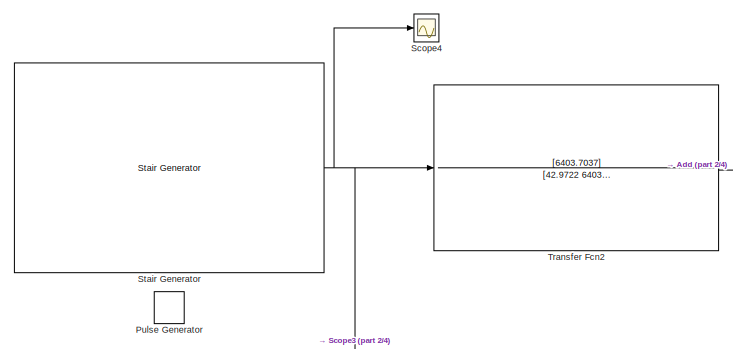
[diagram: root canvas - part 1/4, top left region]
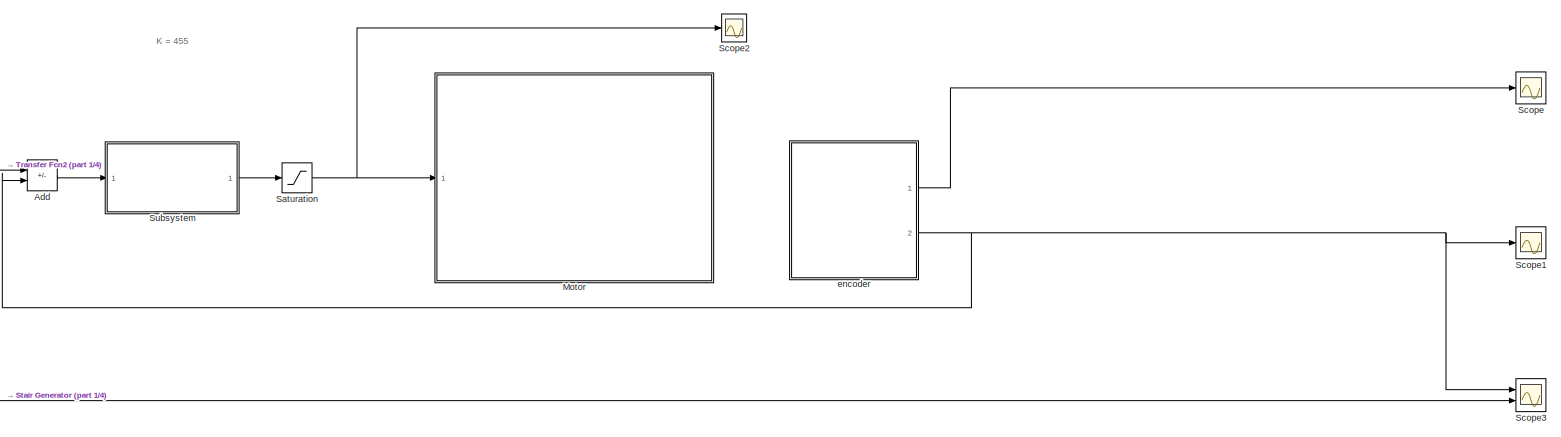
[diagram: root canvas - part 2/4, top right region]
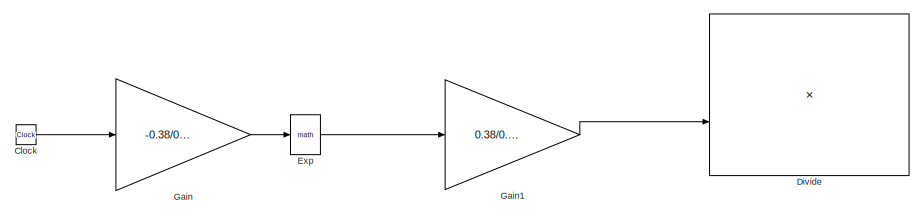
[diagram: root canvas - part 3/4, central region]
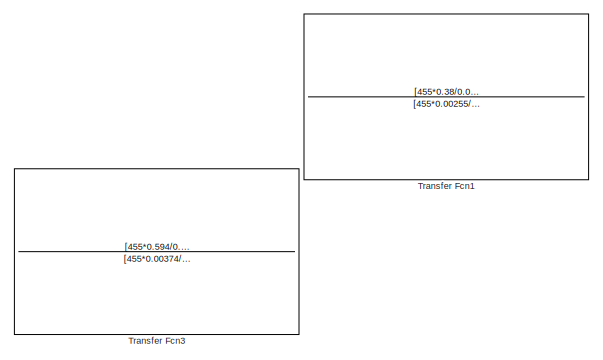
[diagram: root canvas - part 4/4, bottom right region]
MODEL slx_892e5833729a
KIND model
CONFIG AbsTol = auto
CONFIG EnableMultiTasking = on
CONFIG FixedStep = 0.001
CONFIG MaxStep = auto
CONFIG MinStep = auto
CONFIG RelTol = 1e-3
CONFIG SampleTimeConstraint = Unconstrained
CONFIG SolverName = FixedStepAuto
CONFIG StartTime = 0.0
CONFIG StopTime = inf
BLOCK [Sum] Add
  IconShape = rectangular
  Inputs = +-
  Ports = [2, 1]
BLOCK [Clock] Clock
  Commented = on
  Decimation = 1
BLOCK [Product] Divide
  Commented = on
  Inputs = **
  Ports = [2, 1]
BLOCK [Math] Exp
  Commented = on
  Ports = [1, 1]
BLOCK [Gain] Gain
  Commented = on
  Gain = -0.38/0.00255
BLOCK [Gain] Gain1
  Commented = on
  Gain = 0.38/0.00255
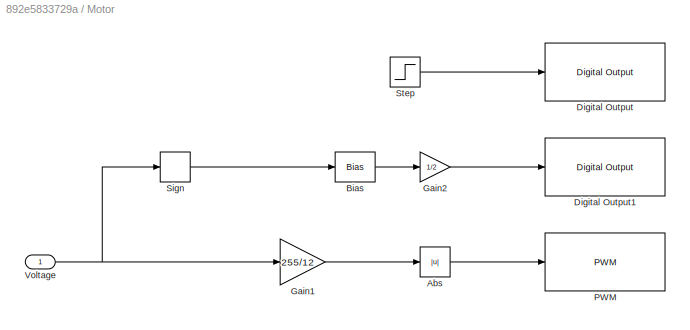
BLOCK [SubSystem] Motor
  Ports = [1]
  RequestExecContextInheritance = off
BLOCK [Abs] Motor/Abs
  SaturateOnIntegerOverflow = off
BLOCK [Bias] Motor/Bias
  Bias = 1
  SaturateOnIntegerOverflow = off
BLOCK [Reference] Motor/Digital Output  REF=arduinolib/Digital Output
  Ports = [1]
  SourceBlock = arduinolib/Digital Output
  SourceProductBaseCode = ARDUINO
  SourceType = Arduino Digital Output
BLOCK [Reference] Motor/Digital Output1  REF=arduinolib/Digital Output
  Ports = [1]
  SourceBlock = arduinolib/Digital Output
  SourceProductBaseCode = ARDUINO
  SourceType = Arduino Digital Output
BLOCK [Gain] Motor/Gain1
  Gain = 255/12
BLOCK [Gain] Motor/Gain2
  Gain = 1/2
BLOCK [Reference] Motor/PWM  REF=arduinolib/PWM
  Ports = [1]
  SourceBlock = arduinolib/PWM
  SourceProductBaseCode = ARDUINO
  SourceType = Arduino PWM
BLOCK [Signum] Motor/Sign
BLOCK [Step] Motor/Step
  After = 0
  Before = 1
  SampleTime = 0
  Time = 2
BLOCK [Inport] Motor/Voltage
BLOCK [DiscretePulseGenerator] Pulse Generator
  Amplitude = 4000
  Ports = [0, 1]
  PulseType = Time based
  PulseWidth = 50
BLOCK [Saturate] Saturation
  LowerLimit = -12
  UpperLimit = 12
BLOCK [Scope] Scope
  Floating = off
  NumInputPorts = 1
  Ports = [1]
  ScopeSpecificationString = Simulink.scopes.TimeScopeBlockCfg('CurrentConfiguration', extmgr.ConfigurationSet(extmgr.Configuration('Core','General UI',true),extmgr.Configuration('Core','Source UI',true),extmgr.Configuration('Sources','WiredSimulink',true,'DataLoggingVariableName','ScopeData1'),extmgr.Configuration('Visuals','Time Domain',true,'SerializedDisplays',{struct('MinYLimReal','-7890.99609','MaxYLimReal','40883.02734...<+1795ch>
BLOCK [Scope] Scope1
  Floating = off
  NumInputPorts = 1
  Ports = [1]
  ScopeSpecificationString = Simulink.scopes.TimeScopeBlockCfg('CurrentConfiguration', extmgr.ConfigurationSet(extmgr.Configuration('Core','General UI',true),extmgr.Configuration('Core','Source UI',true),extmgr.Configuration('Sources','WiredSimulink',true,'DataLoggingVariableName','ScopeData2','DataLogging',true,'DataLoggingSaveFormat','StructureWithTime'),extmgr.Configuration('Visuals','Time Domain',true,'SerializedDisplays'...<+1905ch>
BLOCK [Scope] Scope2
  Floating = off
  NumInputPorts = 1
  Ports = [1]
  ScopeSpecificationString = Simulink.scopes.TimeScopeBlockCfg('CurrentConfiguration', extmgr.ConfigurationSet(extmgr.Configuration('Core','General UI',true),extmgr.Configuration('Core','Source UI',true),extmgr.Configuration('Sources','WiredSimulink',true,'DataLoggingVariableName','ScopeData3'),extmgr.Configuration('Visuals','Time Domain',true,'SerializedDisplays',{struct('MinYLimReal','-15.00000','MaxYLimReal','15.00000','YL...<+1481ch>
BLOCK [Scope] Scope3
  Floating = off
  NumInputPorts = 2
  Ports = [2]
  ScopeSpecificationString = Simulink.scopes.TimeScopeBlockCfg('CurrentConfiguration', extmgr.ConfigurationSet(extmgr.Configuration('Core','General UI',true),extmgr.Configuration('Core','Source UI',true),extmgr.Configuration('Sources','WiredSimulink',true,'DataLogging',true,'DataLoggingSaveFormat','StructureWithTime'),extmgr.Configuration('Visuals','Time Domain',true,'TimeAxisLabels','All','SerializedDisplays',{struct('MinYLi...<+2070ch>
BLOCK [Scope] Scope4
  Floating = off
  NumInputPorts = 1
  Ports = [1]
  ScopeSpecificationString = Simulink.scopes.TimeScopeBlockCfg('CurrentConfiguration', extmgr.ConfigurationSet(extmgr.Configuration('Core','General UI',true),extmgr.Configuration('Core','Source UI',true),extmgr.Configuration('Sources','WiredSimulink',true,'DataLoggingVariableName','ScopeData1'),extmgr.Configuration('Visuals','Time Domain',true,'SerializedDisplays',{struct('MinYLimReal','-15.00000','MaxYLimReal','15.00000','YL...<+1512ch>
BLOCK [Reference] Stair Generator  REF=eeStairGenerator/Stair Generator
  Ports = [0, 1]
  SourceBlock = eeStairGenerator/Stair Generator
  SourceProductBaseCode = PS
  SourceType = Stair Generator
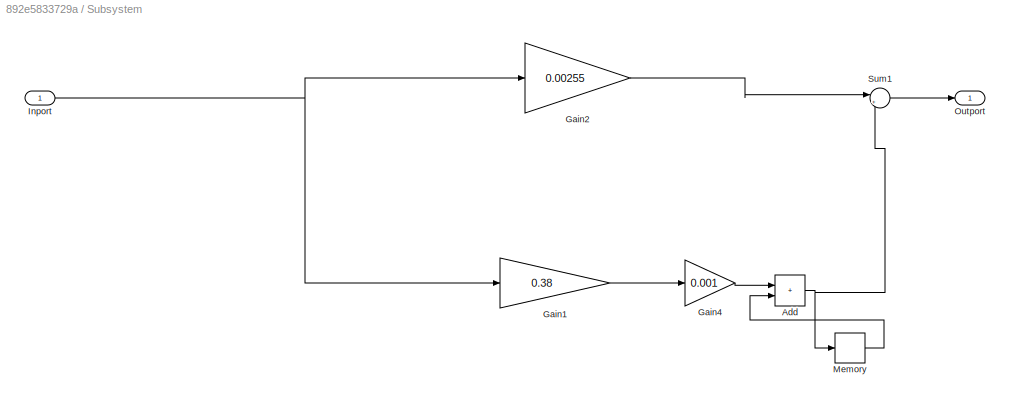
BLOCK [SubSystem] Subsystem
  Ports = [1, 1]
  RequestExecContextInheritance = off
BLOCK [Sum] Subsystem/Add
  IconShape = rectangular
  Ports = [2, 1]
BLOCK [Gain] Subsystem/Gain1
  Gain = 0.38
BLOCK [Gain] Subsystem/Gain2
  Gain = 0.00255
BLOCK [Gain] Subsystem/Gain4
  Gain = 0.001
BLOCK [Inport] Subsystem/Inport
  NameLocation = left
BLOCK [Memory] Subsystem/Memory
BLOCK [Outport] Subsystem/Outport
BLOCK [Sum] Subsystem/Sum1
  Inputs = |++
  Ports = [2, 1]
BLOCK [TransferFcn] Transfer Fcn1
  Denominator = [455*0.00255/0.027 455*0.38/0.027]
  Numerator = [455*0.38/0.027]
BLOCK [TransferFcn] Transfer Fcn2
  Denominator = [42.9722 6403.7037]
  Numerator = [6403.7037]
BLOCK [TransferFcn] Transfer Fcn3
  Denominator = [455*0.00374/0.027 455*0.594/0.027]
  Numerator = [455*0.594/0.027]
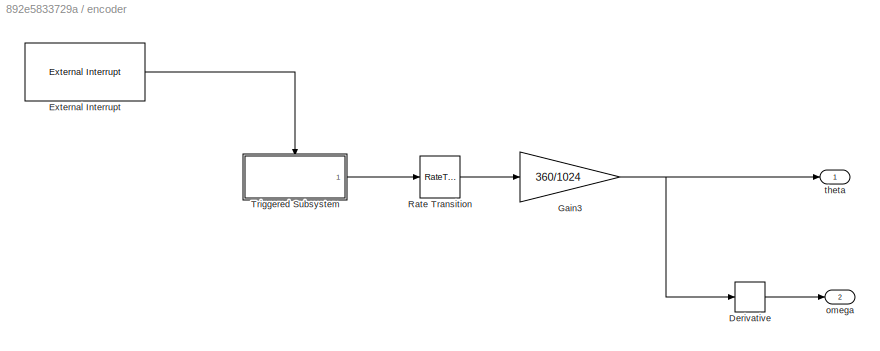
BLOCK [SubSystem] encoder
  Ports = [0, 2]
  RequestExecContextInheritance = off
BLOCK [Derivative] encoder/Derivative
BLOCK [Reference] encoder/External Interrupt  REF=arduinolib/External Interrupt
  Ports = [0, 1]
  SourceBlock = arduinolib/External Interrupt
  SourceProductBaseCode = ARDUINO
  SourceType = Arduino Interrupt Block
BLOCK [Gain] encoder/Gain3
  Gain = 360/1024
BLOCK [RateTransition] encoder/Rate Transition
  Deterministic = off
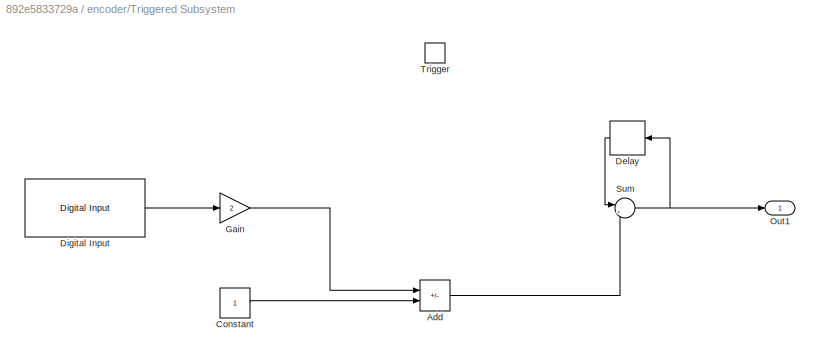
BLOCK [SubSystem] encoder/Triggered Subsystem
  Ports = [0, 1, 0, 1]
  RequestExecContextInheritance = off
  TreatAsAtomicUnit = on
BLOCK [Sum] encoder/Triggered Subsystem/Add
  IconShape = rectangular
  Inputs = +-
  Ports = [2, 1]
BLOCK [Constant] encoder/Triggered Subsystem/Constant
BLOCK [Delay] encoder/Triggered Subsystem/Delay
  DelayLength = 1
  InputPortMap = u0
  NameLocation = top
  Ports = [1, 1]
BLOCK [Reference] encoder/Triggered Subsystem/Digital Input  REF=arduinolib/Digital Input
  Ports = [0, 1]
  SourceBlock = arduinolib/Digital Input
  SourceProductBaseCode = ARDUINO
  SourceType = Arduino Digital Input
BLOCK [Gain] encoder/Triggered Subsystem/Gain
  Gain = 2
BLOCK [Outport] encoder/Triggered Subsystem/Out1
BLOCK [Sum] encoder/Triggered Subsystem/Sum
  Inputs = |++
  Ports = [2, 1]
BLOCK [TriggerPort] encoder/Triggered Subsystem/Trigger
  Ports = []
  StatesWhenEnabling = held
  TriggerType = function-call
  VariantControl = (inherit)
BLOCK [Outport] encoder/omega
  Port = 2
BLOCK [Outport] encoder/theta
ANNOTATION (root): K = 455
LINE Add:1 -> Subsystem:1
LINE Clock:1 -> Gain:1
LINE Exp:1 -> Gain1:1
LINE Gain1:1 -> Divide:2
LINE Gain:1 -> Exp:1
LINE Motor/Abs:1 -> Motor/PWM:1
LINE Motor/Bias:1 -> Motor/Gain2:1
LINE Motor/Gain1:1 -> Motor/Abs:1
LINE Motor/Gain2:1 -> Motor/Digital Output1:1
LINE Motor/Sign:1 -> Motor/Bias:1
LINE Motor/Step:1 -> Motor/Digital Output:1
NET Motor/Voltage:1 -> Motor/Gain1:1, Motor/Sign:1
NET Saturation:1 -> Motor:1, Scope2:1
NET Stair Generator:1 -> Scope3:2, Scope4:1, Transfer Fcn2:1
NET Subsystem/Add:1 -> Subsystem/Memory:1, Subsystem/Sum1:2
LINE Subsystem/Gain1:1 -> Subsystem/Gain4:1
LINE Subsystem/Gain2:1 -> Subsystem/Sum1:1
LINE Subsystem/Gain4:1 -> Subsystem/Add:1
NET Subsystem/Inport:1 -> Subsystem/Gain1:1, Subsystem/Gain2:1
LINE Subsystem/Memory:1 -> Subsystem/Add:2
LINE Subsystem/Sum1:1 -> Subsystem/Outport:1
LINE Subsystem:1 -> Saturation:1
LINE Transfer Fcn2:1 -> Add:1
LINE encoder/Derivative:1 -> encoder/omega:1
LINE encoder/External Interrupt:1 -> encoder/Triggered Subsystem:trigger
NET encoder/Gain3:1 -> encoder/Derivative:1, encoder/theta:1
LINE encoder/Rate Transition:1 -> encoder/Gain3:1
LINE encoder/Triggered Subsystem/Add:1 -> encoder/Triggered Subsystem/Sum:2
LINE encoder/Triggered Subsystem/Constant:1 -> encoder/Triggered Subsystem/Add:2
LINE encoder/Triggered Subsystem/Delay:1 -> encoder/Triggered Subsystem/Sum:1
LINE encoder/Triggered Subsystem/Digital Input:1 -> encoder/Triggered Subsystem/Gain:1
LINE encoder/Triggered Subsystem/Gain:1 -> encoder/Triggered Subsystem/Add:1
NET encoder/Triggered Subsystem/Sum:1 -> encoder/Triggered Subsystem/Delay:1, encoder/Triggered Subsystem/Out1:1
LINE encoder/Triggered Subsystem:1 -> encoder/Rate Transition:1
LINE encoder:1 -> Scope:1
NET encoder:2 -> Add:2, Scope1:1, Scope3:1
note: NET lines group one-source signal fan-out (src -> all destinations, sorted); 1:1 wires keep LINE
